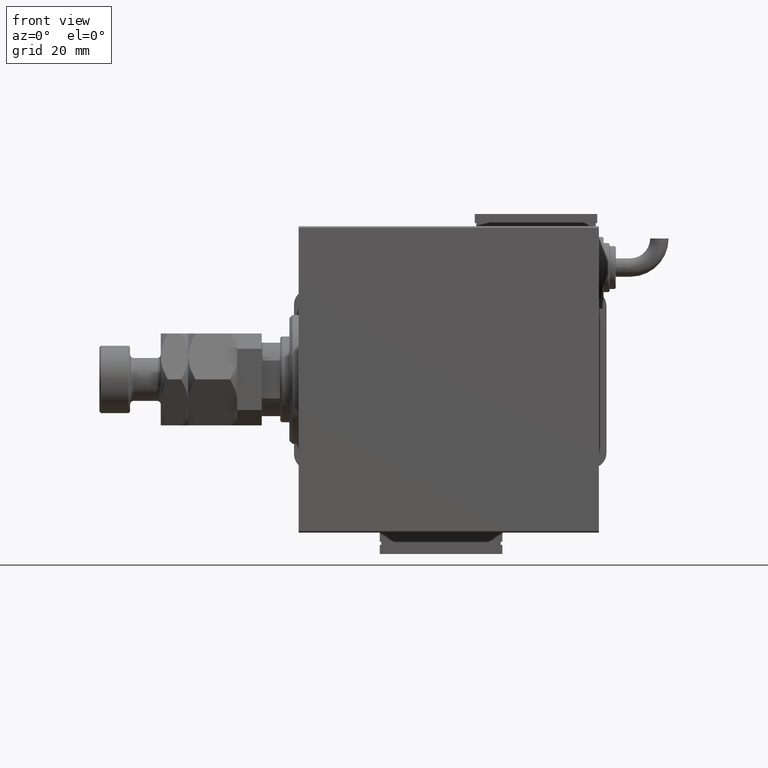
[diagram: clean part render]
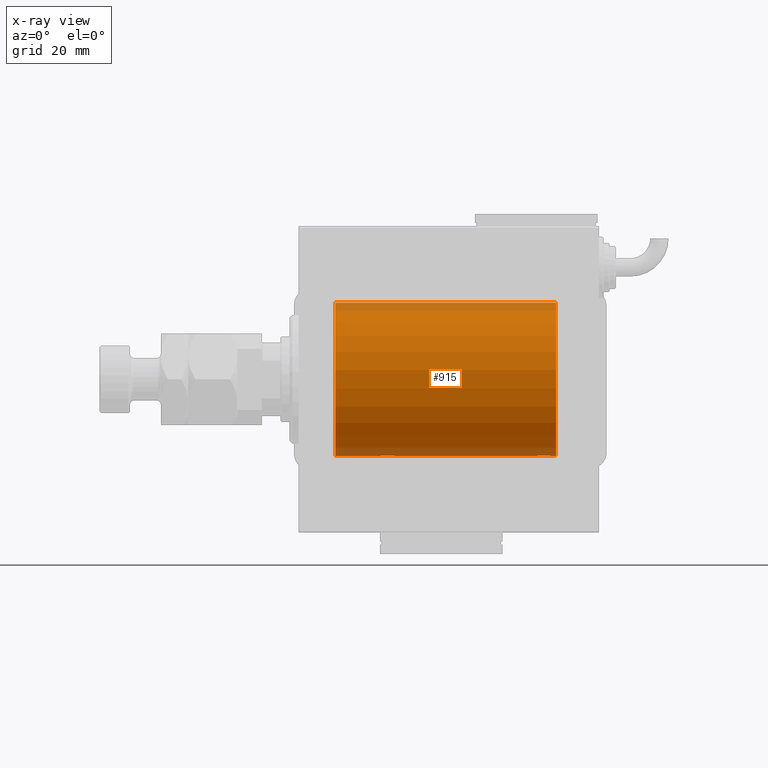
[diagram: x-ray — body ghosted, one internal face saturated and labeled with its STEP entity id]
A machine part, front view, then the same camera in x-ray: the body is ghosted and one INTERNAL B-rep face — a face not visible from any outside direction — is saturated and labeled: STEP entity #915.
In plain terms, the highlighted cylindrical surface (partial cylindrical patch) has radius 25 mm, axis along (-1, -0, -0).
Its self-contained STEP definition (entity closure, byte-faithful):
#568 = AXIS2_PLACEMENT_3D ( 'NONE', #11109, #34267, #58093 ) ;
#830 = B_SPLINE_CURVE_WITH_KNOTS ( 'NONE', 3,
 ( #3308, #22377, #41476, #60599, #46495, #32382, #51499, #8621, #61212, #22985, #43626, #14530, #37387, #33617, #10140, #18288, #52735, #53036, #29215, #9537, #24209, #56506, #19204, #48337, #28914, #9846, #5449, #4538, #37701, #38003, #43316, #4853 ),
 .UNSPECIFIED., .F., .F.,
 ( 4, 2, 2, 2, 2, 2, 2, 2, 2, 2, 2, 2, 2, 2, 2, 4 ),
 ( 0.007821024441662298085, 0.008309723826317902753, 0.008798423210973509156, 0.009287122595629113825, 0.009775821980284718493, 0.01026452136494032490, 0.01075322074959592956, 0.01124192013425153597, 0.01173061951890714064, 0.01221931890356274530, 0.01270801828821835171, 0.01319671767287395811, 0.01368541705752956104, 0.01417411644218516745, 0.01466281582684077212, 0.01564021459615199880 ),
 .UNSPECIFIED. ) ;
#915 = ADVANCED_FACE ( 'NONE', ( #49976 ), #26157, .F. ) ;
#1770 = LINE ( 'NONE', #20846, #27366 ) ;
#1857 = CARTESIAN_POINT ( 'NONE',  ( 29.80788342405805125, -2.371528299825743424, -24.88734287464369999 ) ) ;
#2390 = VERTEX_POINT ( 'NONE', #57036 ) ;
#2480 = CARTESIAN_POINT ( 'NONE',  ( 29.32947680114269318, -2.483544361357266972, -24.87635491893501793 ) ) ;
#3308 = CARTESIAN_POINT ( 'NONE',  ( 82.50000000000001421, 3.061616978466502512E-15, -25.00000000000000000 ) ) ;
#3551 = VERTEX_POINT ( 'NONE', #6599 ) ;
#4026 = CARTESIAN_POINT ( 'NONE',  ( 26.50000000000000355, -3.314090237927254693E-15, -25.00000000000000000 ) ) ;
#4538 = CARTESIAN_POINT ( 'NONE',  ( 77.83172358506043054, -1.255214705003180109, -24.96884293994577675 ) ) ;
#4853 = CARTESIAN_POINT ( 'NONE',  ( 77.50000000000001421, -3.163294216715586498E-15, -25.00000000000000000 ) ) ;
#5346 = CARTESIAN_POINT ( 'NONE',  ( 82.50000000000001421, 3.061616978466502512E-15, -25.00000000000000000 ) ) ;
#5449 = CARTESIAN_POINT ( 'NONE',  ( 78.01461966282909088, -1.528152964861308138, -24.95362559291378091 ) ) ;
#6599 = CARTESIAN_POINT ( 'NONE',  ( 26.50000000000000355, -3.314090237927254693E-15, -25.00000000000000000 ) ) ;
#6864 = CARTESIAN_POINT ( 'NONE',  ( 84.00000000000000000, 0.000000000000000000, 25.00000000000000000 ) ) ;
#7033 = DIRECTION ( 'NONE',  ( -1.000000000000000000, 0.000000000000000000, 0.000000000000000000 ) ) ;
#7487 = CARTESIAN_POINT ( 'NONE',  ( 27.11814045851354393, -1.653834020452936260, -24.94550385189585029 ) ) ;
#8011 = ORIENTED_EDGE ( 'NONE', *, *, #20296, .F. ) ;
#8023 = CARTESIAN_POINT ( 'NONE',  ( 84.00000000000000000, 0.000000000000000000, 0.000000000000000000 ) ) ;
#8556 = VERTEX_POINT ( 'NONE', #11659 ) ;
#8580 = CIRCLE ( 'NONE', #43551, 25.00000000000000000 ) ;
#8621 = CARTESIAN_POINT ( 'NONE',  ( 81.98749815834398191, -1.525407911884367529, -24.95379469572361586 ) ) ;
#9537 = CARTESIAN_POINT ( 'NONE',  ( 79.35439333851368815, -2.420689345803750836, -24.88254961038873958 ) ) ;
#9846 = CARTESIAN_POINT ( 'NONE',  ( 78.11814045851357946, -1.653834020452939146, -24.94550385189584318 ) ) ;
#10140 = CARTESIAN_POINT ( 'NONE',  ( 80.64904390169097326, -2.419770561643902695, -24.88263927071750814 ) ) ;
#11109 = CARTESIAN_POINT ( 'NONE',  ( 11.99999999999999645, 0.000000000000000000, 0.000000000000000000 ) ) ;
#11239 = CARTESIAN_POINT ( 'NONE',  ( 30.11036796508863844, -2.245863995402896496, -24.89899750494197406 ) ) ;
#11554 = CARTESIAN_POINT ( 'NONE',  ( 26.75393620905934000, -1.109818057797415936, -24.97580694515542987 ) ) ;
#11659 = CARTESIAN_POINT ( 'NONE',  ( 77.50000000000001421, -3.163294216715586498E-15, -25.00000000000000000 ) ) ;
#13408 = CARTESIAN_POINT ( 'NONE',  ( 84.00000000000000000, 3.061616997868382254E-15, -25.00000000000000000 ) ) ;
#13777 = ORIENTED_EDGE ( 'NONE', *, *, #16170, .T. ) ;
#14530 = CARTESIAN_POINT ( 'NONE',  ( 81.25383195424505800, -2.169003991399860443, -24.90589728951139037 ) ) ;
#15695 = EDGE_CURVE ( 'NONE', #41027, #61069, #1770, .T. ) ;
#16170 = EDGE_CURVE ( 'NONE', #25379, #22923, #56309, .T. ) ;
#16783 = CARTESIAN_POINT ( 'NONE',  ( 84.00000000000000000, 3.061616997868382254E-15, -25.00000000000000000 ) ) ;
#16863 = CARTESIAN_POINT ( 'NONE',  ( 28.83676410361456632, -2.500125740978190958, -24.87467329022545215 ) ) ;
#17156 = ORIENTED_EDGE ( 'NONE', *, *, #57566, .T. ) ;
#17241 = VERTEX_POINT ( 'NONE', #61254 ) ;
#18099 = EDGE_CURVE ( 'NONE', #8556, #17241, #34584, .T. ) ;
#18288 = CARTESIAN_POINT ( 'NONE',  ( 80.32947680114270383, -2.483544361357264751, -24.87635491893501438 ) ) ;
#19204 = CARTESIAN_POINT ( 'NONE',  ( 78.74915976075949686, -2.170728182476720391, -24.90574631553725027 ) ) ;
#20296 = EDGE_CURVE ( 'NONE', #25379, #41027, #8580, .T. ) ;
#20846 = CARTESIAN_POINT ( 'NONE',  ( 84.00000000000000000, 0.000000000000000000, 25.00000000000000000 ) ) ;
#21241 = CARTESIAN_POINT ( 'NONE',  ( 31.48417840057656036, -0.3254210271412191213, -24.99840249400844172 ) ) ;
#21871 = CARTESIAN_POINT ( 'NONE',  ( 29.16706495178061331, -2.499872792855078352, -24.87469871246083031 ) ) ;
#22029 = CARTESIAN_POINT ( 'NONE',  ( 11.99999999999999645, 0.000000000000000000, 25.00000000000000000 ) ) ;
#22282 = ORIENTED_EDGE ( 'NONE', *, *, #18099, .T. ) ;
#22377 = CARTESIAN_POINT ( 'NONE',  ( 82.50000000000000000, -0.1631750940176171505, -25.00000000000000355 ) ) ;
#22746 = VECTOR ( 'NONE', #36187, 1000.000000000000000 ) ;
#22923 = VERTEX_POINT ( 'NONE', #5346 ) ;
#22985 = CARTESIAN_POINT ( 'NONE',  ( 81.65383336149341176, -1.881857718844715421, -24.92933960374833546 ) ) ;
#23091 = CARTESIAN_POINT ( 'NONE',  ( 26.56650644760253499, -0.6588655613945881839, -24.99312727339971119 ) ) ;
#23471 = EDGE_CURVE ( 'NONE', #2390, #61069, #30517, .T. ) ;
#24209 = CARTESIAN_POINT ( 'NONE',  ( 79.19564339083697746, -2.372734907014171224, -24.88722742718433523 ) ) ;
#25138 = EDGE_LOOP ( 'NONE', ( #8011, #13777, #55745, #22282, #17156, #60291, #47742, #58052 ) ) ;
#25185 = DIRECTION ( 'NONE',  ( -1.000000000000000000, -0.000000000000000000, -0.000000000000000000 ) ) ;
#25379 = VERTEX_POINT ( 'NONE', #60202 ) ;
#26157 = CYLINDRICAL_SURFACE ( 'NONE', #31929, 25.00000000000000000 ) ;
#26789 = DIRECTION ( 'NONE',  ( -1.000000000000000000, -0.000000000000000000, -0.000000000000000000 ) ) ;
#27366 = VECTOR ( 'NONE', #30219, 1000.000000000000000 ) ;
#28914 = CARTESIAN_POINT ( 'NONE',  ( 78.34878866440891443, -1.884161199660618013, -24.92916496727982789 ) ) ;
#29015 = DIRECTION ( 'NONE',  ( -1.000000000000000000, -0.000000000000000000, -0.000000000000000000 ) ) ;
#29215 = CARTESIAN_POINT ( 'NONE',  ( 79.67403429960539540, -2.484007091859756766, -24.87630842367762796 ) ) ;
#29376 = EDGE_CURVE ( 'NONE', #22923, #8556, #830, .T. ) ;
#30219 = DIRECTION ( 'NONE',  ( -1.000000000000000000, -0.000000000000000000, -0.000000000000000000 ) ) ;
#30517 = CIRCLE ( 'NONE', #568, 25.00000000000000000 ) ;
#30631 = CARTESIAN_POINT ( 'NONE',  ( 28.35439333851369526, -2.420689345803757053, -24.88254961038873958 ) ) ;
#30940 = CARTESIAN_POINT ( 'NONE',  ( 31.50000000000000000, 3.061616978460191625E-15, -25.00000000000000000 ) ) ;
#31253 = CARTESIAN_POINT ( 'NONE',  ( 27.74915976075945068, -2.170728182476715951, -24.90574631553724672 ) ) ;
#31929 = AXIS2_PLACEMENT_3D ( 'NONE', #8023, #26789, #45273 ) ;
#32370 = VECTOR ( 'NONE', #29015, 1000.000000000000000 ) ;
#32382 = CARTESIAN_POINT ( 'NONE',  ( 82.24760251019554858, -1.106703319666881180, -24.97594585958024282 ) ) ;
#33617 = CARTESIAN_POINT ( 'NONE',  ( 80.80788342405803348, -2.371528299825742092, -24.88734287464371064 ) ) ;
#34267 = DIRECTION ( 'NONE',  ( -1.000000000000000000, 0.000000000000000000, 0.000000000000000000 ) ) ;
#34584 = LINE ( 'NONE', #48994, #44446 ) ;
#35009 = CARTESIAN_POINT ( 'NONE',  ( 31.24760251019550950, -1.106703319666878960, -24.97594585958023217 ) ) ;
#35324 = CARTESIAN_POINT ( 'NONE',  ( 26.83172358506043764, -1.255214705003178555, -24.96884293994578741 ) ) ;
#35957 = CARTESIAN_POINT ( 'NONE',  ( 27.89276154161589716, -2.247417070759893498, -24.89885693081946272 ) ) ;
#36187 = DIRECTION ( 'NONE',  ( -1.000000000000000000, -0.000000000000000000, -0.000000000000000000 ) ) ;
#36268 = CARTESIAN_POINT ( 'NONE',  ( 29.64904390169096615, -2.419770561643904472, -24.88263927071750459 ) ) ;
#37387 = CARTESIAN_POINT ( 'NONE',  ( 81.11036796508865621, -2.245863995402895164, -24.89899750494197406 ) ) ;
#37701 = CARTESIAN_POINT ( 'NONE',  ( 77.75393620905936132, -1.109818057797414381, -24.97580694515541921 ) ) ;
#38003 = CARTESIAN_POINT ( 'NONE',  ( 77.56650644760256341, -0.6588655613945877398, -24.99312727339970408 ) ) ;
#38606 = B_SPLINE_CURVE_WITH_KNOTS ( 'NONE', 3,
 ( #30940, #60403, #21241, #40345, #59467, #35009, #54454, #40971, #49749, #50061, #45362, #45682, #11239, #1857, #36268, #2480, #21871, #16863, #54134, #30631, #55079, #35957, #31253, #40029, #45052, #7487, #55389, #35324, #11554, #23091, #47217, #4026 ),
 .UNSPECIFIED., .F., .F.,
 ( 4, 2, 2, 2, 2, 2, 2, 2, 2, 2, 2, 2, 2, 2, 2, 4 ),
 ( 0.007821024441662303289, 0.008309723826317913162, 0.008798423210973523034, 0.009287122595629127703, 0.009775821980284732371, 0.01026452136494033877, 0.01075322074959594518, 0.01124192013425154985, 0.01173061951890715451, 0.01221931890356276092, 0.01270801828821836559, 0.01319671767287397025, 0.01368541705752957666, 0.01417411644218518132, 0.01466281582684078599, 0.01564021459615200227 ),
 .UNSPECIFIED. ) ;
#40029 = CARTESIAN_POINT ( 'NONE',  ( 27.47743225659811017, -1.989585286700241928, -24.92087098724766037 ) ) ;
#40345 = CARTESIAN_POINT ( 'NONE',  ( 31.42014909220929653, -0.6480119923854192887, -24.99212088949391131 ) ) ;
#40971 = CARTESIAN_POINT ( 'NONE',  ( 30.98749815834399257, -1.525407911884362644, -24.95379469572362652 ) ) ;
#41027 = VERTEX_POINT ( 'NONE', #6864 ) ;
#41476 = CARTESIAN_POINT ( 'NONE',  ( 82.48417840057659589, -0.3254210271412191768, -24.99840249400844883 ) ) ;
#43316 = CARTESIAN_POINT ( 'NONE',  ( 77.50000000000001421, -0.3305063766663793867, -25.00000000000000711 ) ) ;
#43551 = AXIS2_PLACEMENT_3D ( 'NONE', #49921, #7033, #45217 ) ;
#43626 = CARTESIAN_POINT ( 'NONE',  ( 81.52536182243082408, -1.987446652080251619, -24.92104239223420592 ) ) ;
#44446 = VECTOR ( 'NONE', #25185, 1000.000000000000000 ) ;
#45052 = CARTESIAN_POINT ( 'NONE',  ( 27.34878866440887535, -1.884161199660613351, -24.92916496727982079 ) ) ;
#45217 = DIRECTION ( 'NONE',  ( 0.000000000000000000, 0.000000000000000000, 1.000000000000000000 ) ) ;
#45273 = DIRECTION ( 'NONE',  ( 0.000000000000000000, 0.000000000000000000, 1.000000000000000000 ) ) ;
#45362 = CARTESIAN_POINT ( 'NONE',  ( 30.52536182243080276, -1.987446652080258724, -24.92104239223419881 ) ) ;
#45682 = CARTESIAN_POINT ( 'NONE',  ( 30.25383195424503668, -2.169003991399866660, -24.90589728951138682 ) ) ;
#46495 = CARTESIAN_POINT ( 'NONE',  ( 82.37215969408609340, -0.8058335233485441895, -24.98746277938383287 ) ) ;
#47217 = CARTESIAN_POINT ( 'NONE',  ( 26.50000000000001066, -0.3305063766663772773, -25.00000000000000711 ) ) ;
#47742 = ORIENTED_EDGE ( 'NONE', *, *, #23471, .T. ) ;
#48337 = CARTESIAN_POINT ( 'NONE',  ( 78.47743225659816346, -1.989585286700248590, -24.92087098724766747 ) ) ;
#48994 = CARTESIAN_POINT ( 'NONE',  ( 84.00000000000000000, 3.061616997868382254E-15, -25.00000000000000000 ) ) ;
#49749 = CARTESIAN_POINT ( 'NONE',  ( 30.88412382786470900, -1.651251241585097951, -24.94567559498349141 ) ) ;
#49921 = CARTESIAN_POINT ( 'NONE',  ( 84.00000000000000000, 0.000000000000000000, 0.000000000000000000 ) ) ;
#49976 = FACE_OUTER_BOUND ( 'NONE', #25138, .T. ) ;
#50061 = CARTESIAN_POINT ( 'NONE',  ( 30.65383336149338689, -1.881857718844712757, -24.92933960374833902 ) ) ;
#51499 = CARTESIAN_POINT ( 'NONE',  ( 82.17011290280929359, -1.252049606094341572, -24.96900299967627745 ) ) ;
#52735 = CARTESIAN_POINT ( 'NONE',  ( 80.16706495178063108, -2.499872792855076575, -24.87469871246082675 ) ) ;
#53036 = CARTESIAN_POINT ( 'NONE',  ( 79.83676410361458409, -2.500125740978189182, -24.87467329022545215 ) ) ;
#54134 = CARTESIAN_POINT ( 'NONE',  ( 28.67403429960539540, -2.484007091859760319, -24.87630842367762440 ) ) ;
#54454 = CARTESIAN_POINT ( 'NONE',  ( 31.17011290280923674, -1.252049606094335132, -24.96900299967627035 ) ) ;
#55079 = CARTESIAN_POINT ( 'NONE',  ( 28.19564339083698457, -2.372734907014170780, -24.88722742718433878 ) ) ;
#55389 = CARTESIAN_POINT ( 'NONE',  ( 27.01461966282905891, -1.528152964861308138, -24.95362559291378801 ) ) ;
#55745 = ORIENTED_EDGE ( 'NONE', *, *, #29376, .T. ) ;
#56309 = LINE ( 'NONE', #13408, #32370 ) ;
#56506 = CARTESIAN_POINT ( 'NONE',  ( 78.89276154161592558, -2.247417070759896607, -24.89885693081946272 ) ) ;
#56722 = EDGE_CURVE ( 'NONE', #3551, #2390, #59078, .T. ) ;
#57036 = CARTESIAN_POINT ( 'NONE',  ( 11.99999999999999645, 3.061616997868382254E-15, -25.00000000000000000 ) ) ;
#57566 = EDGE_CURVE ( 'NONE', #17241, #3551, #38606, .T. ) ;
#58052 = ORIENTED_EDGE ( 'NONE', *, *, #15695, .F. ) ;
#58093 = DIRECTION ( 'NONE',  ( 0.000000000000000000, 0.000000000000000000, 1.000000000000000000 ) ) ;
#59078 = LINE ( 'NONE', #16783, #22746 ) ;
#59467 = CARTESIAN_POINT ( 'NONE',  ( 31.37215969408607563, -0.8058335233485421911, -24.98746277938383287 ) ) ;
#60202 = CARTESIAN_POINT ( 'NONE',  ( 84.00000000000000000, 3.061616997868382254E-15, -25.00000000000000000 ) ) ;
#60291 = ORIENTED_EDGE ( 'NONE', *, *, #56722, .T. ) ;
#60403 = CARTESIAN_POINT ( 'NONE',  ( 31.49999999999999289, -0.1631750940176174836, -25.00000000000000711 ) ) ;
#60599 = CARTESIAN_POINT ( 'NONE',  ( 82.42014909220930008, -0.6480119923854186226, -24.99212088949390775 ) ) ;
#61069 = VERTEX_POINT ( 'NONE', #22029 ) ;
#61212 = CARTESIAN_POINT ( 'NONE',  ( 81.88412382786472676, -1.651251241585101059, -24.94567559498348430 ) ) ;
#61254 = CARTESIAN_POINT ( 'NONE',  ( 31.50000000000000000, 3.061616978460191625E-15, -25.00000000000000000 ) ) ;